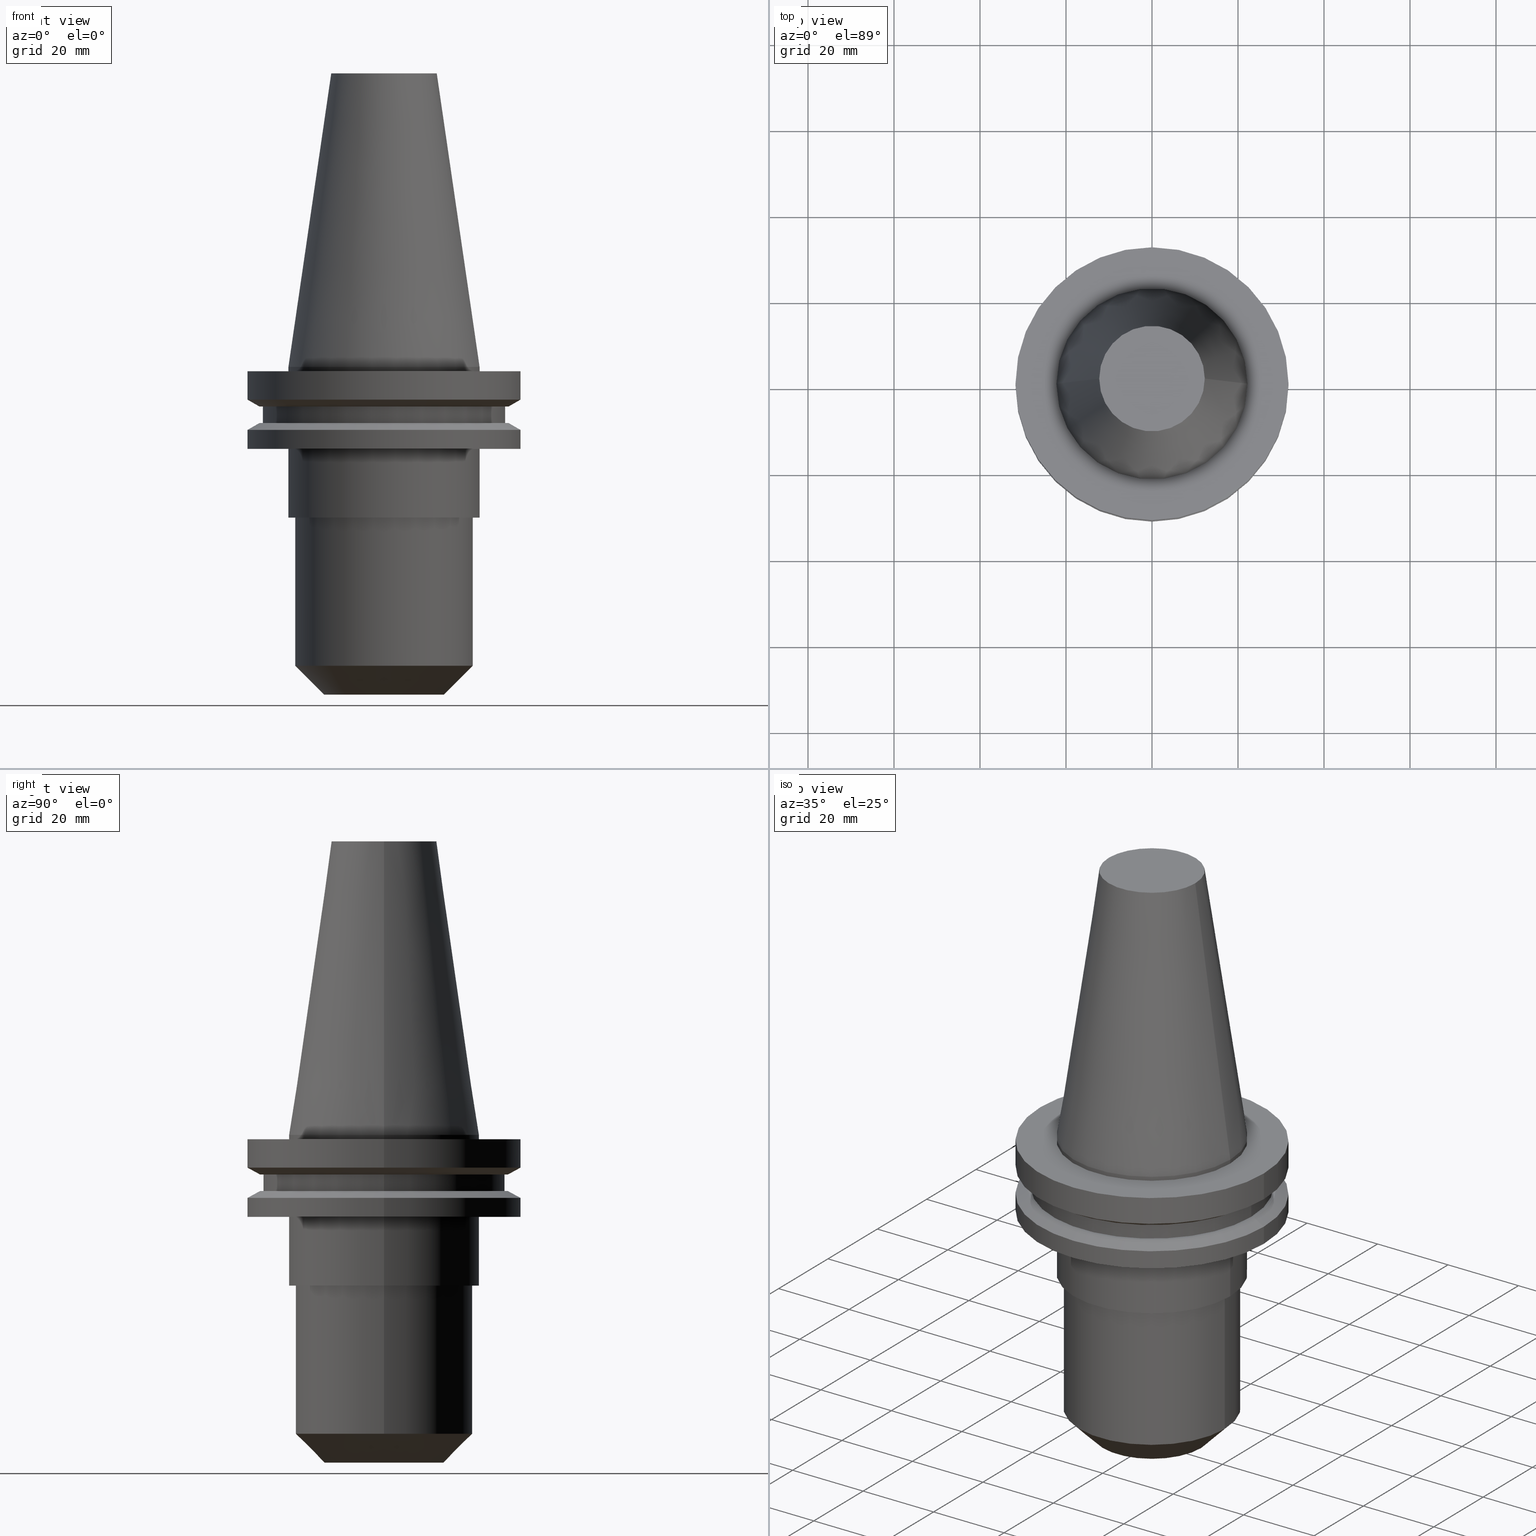
[diagram: canonical four-view strip — front | top / right | iso, engineering-drawing reading convention]
A machine part, canonical four-view strip (front | top / right | iso — engineering-drawing reading convention). The complete STEP part file that produces these views, byte-faithful:
ISO-10303-21;
HEADER;
FILE_DESCRIPTION (( 'STEP AP203' ),
    '1' );
FILE_NAME ('BCV40-EM_625-3.stp',
    '2022-02-23T14:48:29',
    ( '' ),
    ( '' ),
    'SwSTEP 2.0',
    'SolidWorks 2021',
    '' );
FILE_SCHEMA (( 'CONFIG_CONTROL_DESIGN' ));
ENDSEC;

DATA;
#1 = CARTESIAN_POINT ( 'NONE',  ( 0.000000000000000000, 0.000000000000000000, -9.205000000000005400 ) ) ;
#2 = AXIS2_PLACEMENT_3D ( 'NONE', #434, #543, #678 ) ;
#3 = CARTESIAN_POINT ( 'NONE',  ( 0.000000000000000000, 0.000000000000000000, -35.04999999999999716 ) ) ;
#4 = CC_DESIGN_SECURITY_CLASSIFICATION ( #272, ( #30 ) ) ;
#5 = EDGE_LOOP ( 'NONE', ( #97, #91 ) ) ;
#6 = MECHANICAL_CONTEXT ( 'NONE', #168, 'mechanical' ) ;
#7 = CARTESIAN_POINT ( 'NONE',  ( 0.000000000000000000, 0.000000000000000000, 0.000000000000000000 ) ) ;
#8 = PERSON_AND_ORGANIZATION ( #773, #658 ) ;
#9 = CARTESIAN_POINT ( 'NONE',  ( 12.27178102086201150, 2.112318622904291439E-15, 68.25000000000000000 ) ) ;
#10 = CARTESIAN_POINT ( 'NONE',  ( 0.000000000000000000, 22.22499999999999787, -35.04999999999999716 ) ) ;
#11 = CARTESIAN_POINT ( 'NONE',  ( 0.000000000000000000, 0.000000000000000000, 68.25000000000000000 ) ) ;
#12 = CC_DESIGN_PERSON_AND_ORGANIZATION_ASSIGNMENT ( #8, #279, ( #30 ) ) ;
#13 = APPROVAL_STATUS ( 'not_yet_approved' ) ;
#14 = EDGE_LOOP ( 'NONE', ( #20, #565 ) ) ;
#15 = DIRECTION ( 'NONE',  ( 1.000000000000000000, 0.000000000000000000, 0.000000000000000000 ) ) ;
#16 = DIRECTION ( 'NONE',  ( -0.000000000000000000, -0.000000000000000000, 1.000000000000000000 ) ) ;
#17 = EDGE_CURVE ( 'NONE', #575, #775, #487, .T. ) ;
#18 = AXIS2_PLACEMENT_3D ( 'NONE', #398, #117, #52 ) ;
#19 = CIRCLE ( 'NONE', #382, 22.22500000000000142 ) ;
#20 = ORIENTED_EDGE ( 'NONE', *, *, #260, .T. ) ;
#21 = CARTESIAN_POINT ( 'NONE',  ( 0.000000000000000000, 31.75000000000000000, -0.9999999999999995559 ) ) ;
#22 = ORIENTED_EDGE ( 'NONE', *, *, #292, .T. ) ;
#23 = CARTESIAN_POINT ( 'NONE',  ( -22.22500000000000142, 0.000000000000000000, 0.000000000000000000 ) ) ;
#24 = EDGE_CURVE ( 'NONE', #233, #732, #93, .T. ) ;
#25 = EDGE_CURVE ( 'NONE', #371, #512, #323, .T. ) ;
#26 = DIRECTION ( 'NONE',  ( -0.000000000000000000, -0.000000000000000000, 1.000000000000000000 ) ) ;
#27 = ORIENTED_EDGE ( 'NONE', *, *, #532, .F. ) ;
#28 = VECTOR ( 'NONE', #34, 999.9999999999998863 ) ;
#29 = FACE_OUTER_BOUND ( 'NONE', #5, .T. ) ;
#30 = PRODUCT_DEFINITION_FORMATION_WITH_SPECIFIED_SOURCE ( 'ANY', '', #250, .NOT_KNOWN. ) ;
#31 = CARTESIAN_POINT ( 'NONE',  ( 0.000000000000000000, 0.000000000000000000, -1.000000000000000888 ) ) ;
#32 = VERTEX_POINT ( 'NONE', #584 ) ;
#33 = DIRECTION ( 'NONE',  ( 1.000000000000000000, 0.000000000000000000, 0.000000000000000000 ) ) ;
#34 = DIRECTION ( 'NONE',  ( 0.1443082272672999711, 1.767266086135276757E-17, -0.9895327864921755756 ) ) ;
#35 = VERTEX_POINT ( 'NONE', #68 ) ;
#36 = CARTESIAN_POINT ( 'NONE',  ( 0.000000000000000000, 0.000000000000000000, -9.205000000000005400 ) ) ;
#37 = DIRECTION ( 'NONE',  ( 1.000000000000000000, 0.000000000000000000, 0.000000000000000000 ) ) ;
#38 = ORIENTED_EDGE ( 'NONE', *, *, #427, .F. ) ;
#39 = ORIENTED_EDGE ( 'NONE', *, *, #236, .F. ) ;
#40 = AXIS2_PLACEMENT_3D ( 'NONE', #160, #280, #630 ) ;
#41 = AXIS2_PLACEMENT_3D ( 'NONE', #591, #61, #841 ) ;
#42 = AXIS2_PLACEMENT_3D ( 'NONE', #312, #577, #833 ) ;
#43 = DIRECTION ( 'NONE',  ( 1.000000000000000000, 0.000000000000000000, 0.000000000000000000 ) ) ;
#44 = EDGE_LOOP ( 'NONE', ( #302, #853 ) ) ;
#45 = VERTEX_POINT ( 'NONE', #121 ) ;
#46 = DESIGN_CONTEXT ( 'detailed design', #443, 'design' ) ;
#47 = LINE ( 'NONE', #362, #28 ) ;
#48 = DIRECTION ( 'NONE',  ( -0.000000000000000000, -0.000000000000000000, 1.000000000000000000 ) ) ;
#49 = ORIENTED_EDGE ( 'NONE', *, *, #795, .T. ) ;
#50 = CARTESIAN_POINT ( 'NONE',  ( 0.000000000000000000, 0.000000000000000000, -14.65472339340266572 ) ) ;
#51 = EDGE_CURVE ( 'NONE', #371, #316, #264, .T. ) ;
#52 = DIRECTION ( 'NONE',  ( -1.000000000000000000, 0.000000000000000000, -0.000000000000000000 ) ) ;
#53 = FACE_OUTER_BOUND ( 'NONE', #95, .T. ) ;
#54 = CIRCLE ( 'NONE', #546, 22.22500000000000142 ) ;
#55 = LINE ( 'NONE', #786, #126 ) ;
#56 = AXIS2_PLACEMENT_3D ( 'NONE', #346, #402, #70 ) ;
#57 = FACE_OUTER_BOUND ( 'NONE', #176, .T. ) ;
#58 = VECTOR ( 'NONE', #737, 1000.000000000000000 ) ;
#59 = CARTESIAN_POINT ( 'NONE',  ( 0.000000000000000000, 0.000000000000000000, -19.04999999999999716 ) ) ;
#60 = APPLICATION_PROTOCOL_DEFINITION ( 'international standard', 'config_control_design', 1994, #168 ) ;
#61 = DIRECTION ( 'NONE',  ( 0.000000000000000000, 0.000000000000000000, -1.000000000000000000 ) ) ;
#62 = DIRECTION ( 'NONE',  ( 1.000000000000000000, 0.000000000000000000, 0.000000000000000000 ) ) ;
#63 = EDGE_CURVE ( 'NONE', #171, #628, #283, .T. ) ;
#64 = ORIENTED_EDGE ( 'NONE', *, *, #427, .T. ) ;
#65 = CARTESIAN_POINT ( 'NONE',  ( 20.63749999999999929, 0.000000000000000000, 0.000000000000000000 ) ) ;
#66 = FACE_OUTER_BOUND ( 'NONE', #317, .T. ) ;
#67 = CARTESIAN_POINT ( 'NONE',  ( 20.63749999999999929, 0.000000000000000000, -35.04999999999999716 ) ) ;
#68 = CARTESIAN_POINT ( 'NONE',  ( 22.22499999999999787, 0.000000000000000000, -35.04999999999999716 ) ) ;
#69 = LINE ( 'NONE', #395, #412 ) ;
#70 = DIRECTION ( 'NONE',  ( 1.000000000000000000, 0.000000000000000000, 0.000000000000000000 ) ) ;
#71 = CONICAL_SURFACE ( 'NONE', #381, 28.97919780457007732, 1.047197551196598297 ) ;
#72 = DATE_AND_TIME ( #671, #216 ) ;
#73 = EDGE_CURVE ( 'NONE', #420, #534, #649, .T. ) ;
#74 = CARTESIAN_POINT ( 'NONE',  ( 0.000000000000000000, 22.22499999999999787, -35.04999999999999716 ) ) ;
#75 = EDGE_CURVE ( 'NONE', #299, #337, #139, .T. ) ;
#76 = CARTESIAN_POINT ( 'NONE',  ( 22.22500000000000142, 2.721777511104992849E-15, 0.000000000000000000 ) ) ;
#77 = DIRECTION ( 'NONE',  ( 1.000000000000000000, 0.000000000000000000, 0.000000000000000000 ) ) ;
#78 = EDGE_CURVE ( 'NONE', #105, #500, #54, .T. ) ;
#79 = DIRECTION ( 'NONE',  ( -0.1443082272672999711, 0.000000000000000000, -0.9895327864921755756 ) ) ;
#80 = CALENDAR_DATE ( 2022, 23, 2 ) ;
#81 = EDGE_LOOP ( 'NONE', ( #831, #377, #310, #640 ) ) ;
#82 = FACE_OUTER_BOUND ( 'NONE', #766, .T. ) ;
#83 = ADVANCED_FACE ( 'NONE', ( #53 ), #320, .T. ) ;
#84 = CIRCLE ( 'NONE', #214, 12.27178102086201150 ) ;
#85 = AXIS2_PLACEMENT_3D ( 'NONE', #731, #132, #403 ) ;
#86 = VECTOR ( 'NONE', #605, 1000.000000000000000 ) ;
#87 = PLANE ( 'NONE',  #183 ) ;
#88 = ADVANCED_FACE ( 'NONE', ( #595 ), #784, .F. ) ;
#89 = VERTEX_POINT ( 'NONE', #665 ) ;
#90 = CARTESIAN_POINT ( 'NONE',  ( 0.000000000000000000, 0.000000000000000000, -69.50000000000000000 ) ) ;
#91 = ORIENTED_EDGE ( 'NONE', *, *, #486, .F. ) ;
#92 = DIRECTION ( 'NONE',  ( -0.000000000000000000, -0.000000000000000000, 1.000000000000000000 ) ) ;
#93 = CIRCLE ( 'NONE', #209, 7.937500000000000000 ) ;
#94 = DIRECTION ( 'NONE',  ( -0.000000000000000000, -0.000000000000000000, 1.000000000000000000 ) ) ;
#95 = EDGE_LOOP ( 'NONE', ( #237, #358, #564, #620 ) ) ;
#96 = AXIS2_PLACEMENT_3D ( 'NONE', #392, #258, #669 ) ;
#97 = ORIENTED_EDGE ( 'NONE', *, *, #460, .F. ) ;
#98 = DIRECTION ( 'NONE',  ( 1.000000000000000000, 0.000000000000000000, 0.000000000000000000 ) ) ;
#99 = CIRCLE ( 'NONE', #424, 31.75000000000000000 ) ;
#100 = DIRECTION ( 'NONE',  ( -0.000000000000000000, -0.000000000000000000, 1.000000000000000000 ) ) ;
#101 = ORIENTED_EDGE ( 'NONE', *, *, #838, .T. ) ;
#102 = ORIENTED_EDGE ( 'NONE', *, *, #522, .T. ) ;
#103 = CYLINDRICAL_SURFACE ( 'NONE', #454, 7.937500000000000000 ) ;
#104 = LINE ( 'NONE', #319, #198 ) ;
#105 = VERTEX_POINT ( 'NONE', #341 ) ;
#106 = CARTESIAN_POINT ( 'NONE',  ( -31.75000000000000000, 3.888253587292846476E-15, -7.605276606597335842 ) ) ;
#107 = CARTESIAN_POINT ( 'NONE',  ( 0.000000000000000000, 0.000000000000000000, 68.25000000000000000 ) ) ;
#108 = VERTEX_POINT ( 'NONE', #728 ) ;
#109 = VERTEX_POINT ( 'NONE', #527 ) ;
#110 = CIRCLE ( 'NONE', #738, 7.937500000000000000 ) ;
#111 = CYLINDRICAL_SURFACE ( 'NONE', #504, 22.22500000000000142 ) ;
#112 = VERTEX_POINT ( 'NONE', #9 ) ;
#113 = AXIS2_PLACEMENT_3D ( 'NONE', #552, #481, #743 ) ;
#114 = ORIENTED_EDGE ( 'NONE', *, *, #631, .T. ) ;
#115 = EDGE_CURVE ( 'NONE', #299, #109, #407, .T. ) ;
#116 = CC_DESIGN_PERSON_AND_ORGANIZATION_ASSIGNMENT ( #405, #197, ( #250 ) ) ;
#117 = DIRECTION ( 'NONE',  ( 0.000000000000000000, 0.000000000000000000, -1.000000000000000000 ) ) ;
#118 = DIRECTION ( 'NONE',  ( -0.000000000000000000, -0.000000000000000000, 1.000000000000000000 ) ) ;
#119 = DIRECTION ( 'NONE',  ( -0.000000000000000000, -0.000000000000000000, 1.000000000000000000 ) ) ;
#120 = CARTESIAN_POINT ( 'NONE',  ( 22.22500000000000142, 0.000000000000000000, 68.25000000000000000 ) ) ;
#121 = CARTESIAN_POINT ( 'NONE',  ( -13.93749999999997691, 2.117108154025985294E-15, -76.20000000000001705 ) ) ;
#122 = VERTEX_POINT ( 'NONE', #601 ) ;
#123 = DIRECTION ( 'NONE',  ( 1.000000000000000000, 0.000000000000000000, 0.000000000000000000 ) ) ;
#124 = AXIS2_PLACEMENT_3D ( 'NONE', #510, #769, #712 ) ;
#125 = DIRECTION ( 'NONE',  ( 1.000000000000000000, 0.000000000000000000, 0.000000000000000000 ) ) ;
#126 = VECTOR ( 'NONE', #647, 1000.000000000000000 ) ;
#127 = EDGE_LOOP ( 'NONE', ( #269, #518, #847, #816 ) ) ;
#128 = AXIS2_PLACEMENT_3D ( 'NONE', #90, #607, #559 ) ;
#129 = APPROVAL_ROLE ( '' ) ;
#130 = DIRECTION ( 'NONE',  ( -0.000000000000000000, -0.000000000000000000, 1.000000000000000000 ) ) ;
#131 = CARTESIAN_POINT ( 'NONE',  ( 0.000000000000000000, 0.000000000000000000, -76.20000000000001705 ) ) ;
#132 = DIRECTION ( 'NONE',  ( -0.000000000000000000, -0.000000000000000000, 1.000000000000000000 ) ) ;
#133 = ORIENTED_EDGE ( 'NONE', *, *, #17, .F. ) ;
#134 = DIRECTION ( 'NONE',  ( -0.000000000000000000, -0.000000000000000000, 1.000000000000000000 ) ) ;
#135 = DIRECTION ( 'NONE',  ( 1.000000000000000000, 0.000000000000000000, 0.000000000000000000 ) ) ;
#136 = ORIENTED_EDGE ( 'NONE', *, *, #360, .F. ) ;
#137 = PERSON_AND_ORGANIZATION ( #773, #658 ) ;
#138 = EDGE_CURVE ( 'NONE', #452, #325, #793, .T. ) ;
#139 = CIRCLE ( 'NONE', #435, 22.22500000000000142 ) ;
#140 = PLANE ( 'NONE',  #243 ) ;
#141 = AXIS2_PLACEMENT_3D ( 'NONE', #301, #563, #37 ) ;
#142 = CARTESIAN_POINT ( 'NONE',  ( 0.000000000000000000, 0.000000000000000000, -76.20000000000000284 ) ) ;
#143 = CC_DESIGN_APPROVAL ( #212, ( #30 ) ) ;
#144 = CARTESIAN_POINT ( 'NONE',  ( 31.75000000000000000, 3.888253587292846476E-15, -14.65472339340266572 ) ) ;
#145 = EDGE_CURVE ( 'NONE', #450, #732, #851, .T. ) ;
#146 = DIRECTION ( 'NONE',  ( 1.000000000000000000, 0.000000000000000000, 0.000000000000000000 ) ) ;
#147 = DIRECTION ( 'NONE',  ( 1.000000000000000000, 0.000000000000000000, 0.000000000000000000 ) ) ;
#148 = EDGE_LOOP ( 'NONE', ( #192, #715, #252, #650 ) ) ;
#149 = FACE_OUTER_BOUND ( 'NONE', #721, .T. ) ;
#150 = EDGE_CURVE ( 'NONE', #109, #839, #491, .T. ) ;
#151 = DIRECTION ( 'NONE',  ( -0.000000000000000000, -0.000000000000000000, 1.000000000000000000 ) ) ;
#152 = AXIS2_PLACEMENT_3D ( 'NONE', #806, #92, #15 ) ;
#153 = AXIS2_PLACEMENT_3D ( 'NONE', #777, #189, #590 ) ;
#154 = CARTESIAN_POINT ( 'NONE',  ( 0.000000000000000000, 28.97919780457007732, -9.204999999999996518 ) ) ;
#155 = CARTESIAN_POINT ( 'NONE',  ( -31.75000000000000000, 3.888253587292846476E-15, -1.000000000000000888 ) ) ;
#156 = CARTESIAN_POINT ( 'NONE',  ( 31.75000000000000000, 0.000000000000000000, -14.65472339340266572 ) ) ;
#157 = ORIENTED_EDGE ( 'NONE', *, *, #75, .F. ) ;
#158 = ORIENTED_EDGE ( 'NONE', *, *, #855, .T. ) ;
#159 = ADVANCED_FACE ( 'NONE', ( #66, #203 ), #765, .F. ) ;
#160 = CARTESIAN_POINT ( 'NONE',  ( 0.000000000000000000, 0.000000000000000000, 68.25000000000000000 ) ) ;
#161 = CC_DESIGN_DATE_AND_TIME_ASSIGNMENT ( #206, #736, ( #326 ) ) ;
#162 = DIRECTION ( 'NONE',  ( 1.000000000000000000, 0.000000000000000000, 0.000000000000000000 ) ) ;
#163 = CIRCLE ( 'NONE', #226, 13.93749999999997691 ) ;
#164 = EDGE_LOOP ( 'NONE', ( #136, #327, #770, #496 ) ) ;
#165 = CARTESIAN_POINT ( 'NONE',  ( 0.000000000000000000, 0.000000000000000000, 0.000000000000000000 ) ) ;
#166 = CIRCLE ( 'NONE', #186, 28.97919780457007732 ) ;
#167 = EDGE_CURVE ( 'NONE', #452, #290, #228, .T. ) ;
#168 = APPLICATION_CONTEXT ( 'configuration controlled 3d designs of mechanical parts and assemblies' ) ;
#169 = AXIS2_PLACEMENT_3D ( 'NONE', #222, #151, #147 ) ;
#170 = DIRECTION ( 'NONE',  ( -0.000000000000000000, -0.000000000000000000, 1.000000000000000000 ) ) ;
#171 = VERTEX_POINT ( 'NONE', #355 ) ;
#172 = ORIENTED_EDGE ( 'NONE', *, *, #297, .T. ) ;
#173 = DIRECTION ( 'NONE',  ( 1.000000000000000000, 0.000000000000000000, 0.000000000000000000 ) ) ;
#174 = DIRECTION ( 'NONE',  ( 1.000000000000000000, 0.000000000000000000, 0.000000000000000000 ) ) ;
#175 = EDGE_LOOP ( 'NONE', ( #644, #618, #815, #501 ) ) ;
#176 = EDGE_LOOP ( 'NONE', ( #415, #561, #523, #568 ) ) ;
#177 = LINE ( 'NONE', #826, #549 ) ;
#178 = FACE_OUTER_BOUND ( 'NONE', #507, .T. ) ;
#179 = EDGE_CURVE ( 'NONE', #274, #462, #509, .T. ) ;
#180 = ORIENTED_EDGE ( 'NONE', *, *, #494, .F. ) ;
#181 = ADVANCED_FACE ( 'NONE', ( #680 ), #610, .T. ) ;
#182 = ORIENTED_EDGE ( 'NONE', *, *, #63, .F. ) ;
#183 = AXIS2_PLACEMENT_3D ( 'NONE', #21, #619, #418 ) ;
#184 = DIRECTION ( 'NONE',  ( 1.000000000000000000, 0.000000000000000000, 0.000000000000000000 ) ) ;
#185 = AXIS2_PLACEMENT_3D ( 'NONE', #483, #550, #98 ) ;
#186 = AXIS2_PLACEMENT_3D ( 'NONE', #248, #338, #123 ) ;
#187 = DIRECTION ( 'NONE',  ( 1.000000000000000000, 0.000000000000000000, 0.000000000000000000 ) ) ;
#188 = DIRECTION ( 'NONE',  ( 1.000000000000000000, 0.000000000000000000, 0.000000000000000000 ) ) ;
#189 = DIRECTION ( 'NONE',  ( -0.000000000000000000, -0.000000000000000000, 1.000000000000000000 ) ) ;
#190 = CARTESIAN_POINT ( 'NONE',  ( 0.000000000000000000, 0.000000000000000000, 68.25000000000000000 ) ) ;
#191 = EDGE_LOOP ( 'NONE', ( #49, #114, #764, #485 ) ) ;
#192 = ORIENTED_EDGE ( 'NONE', *, *, #167, .F. ) ;
#193 = PLANE ( 'NONE',  #600 ) ;
#194 = LINE ( 'NONE', #120, #548 ) ;
#195 = DIRECTION ( 'NONE',  ( -0.000000000000000000, -0.000000000000000000, 1.000000000000000000 ) ) ;
#196 = ORIENTED_EDGE ( 'NONE', *, *, #249, .F. ) ;
#197 = PERSON_AND_ORGANIZATION_ROLE ( 'design_owner' ) ;
#198 = VECTOR ( 'NONE', #834, 1000.000000000000000 ) ;
#199 = CARTESIAN_POINT ( 'NONE',  ( 0.000000000000000000, 0.000000000000000000, -76.20000000000001705 ) ) ;
#200 = AXIS2_PLACEMENT_3D ( 'NONE', #36, #119, #570 ) ;
#201 = DIRECTION ( 'NONE',  ( 1.000000000000000000, 0.000000000000000000, 0.000000000000000000 ) ) ;
#202 = CARTESIAN_POINT ( 'NONE',  ( 28.97919780457007732, 0.000000000000000000, -9.205000000000005400 ) ) ;
#203 = FACE_BOUND ( 'NONE', #824, .T. ) ;
#204 = CARTESIAN_POINT ( 'NONE',  ( 13.93749999999997691, 0.000000000000000000, -76.20000000000001705 ) ) ;
#205 = ADVANCED_FACE ( 'NONE', ( #149 ), #220, .T. ) ;
#206 = DATE_AND_TIME ( #801, #842 ) ;
#207 = CARTESIAN_POINT ( 'NONE',  ( 31.75000000000000000, 0.000000000000000000, 68.25000000000000000 ) ) ;
#208 = ADVANCED_FACE ( 'NONE', ( #613 ), #829, .T. ) ;
#209 = AXIS2_PLACEMENT_3D ( 'NONE', #3, #598, #62 ) ;
#210 = DIRECTION ( 'NONE',  ( 1.000000000000000000, 0.000000000000000000, 0.000000000000000000 ) ) ;
#211 = AXIS2_PLACEMENT_3D ( 'NONE', #386, #844, #389 ) ;
#212 = APPROVAL ( #270, 'UNSPECIFIED' ) ;
#213 = CYLINDRICAL_SURFACE ( 'NONE', #780, 22.22500000000000142 ) ;
#214 = AXIS2_PLACEMENT_3D ( 'NONE', #190, #724, #125 ) ;
#215 = AXIS2_PLACEMENT_3D ( 'NONE', #659, #130, #334 ) ;
#216 = LOCAL_TIME ( 8, 48, 29.00000000000000000, #410 ) ;
#217 = LINE ( 'NONE', #65, #538 ) ;
#218 = EDGE_LOOP ( 'NONE', ( #589, #622, #526, #757 ) ) ;
#219 = CARTESIAN_POINT ( 'NONE',  ( -28.97919780457007732, 3.548928183322474856E-15, -9.205000000000005400 ) ) ;
#220 = CYLINDRICAL_SURFACE ( 'NONE', #113, 20.63749999999999929 ) ;
#221 = EDGE_CURVE ( 'NONE', #512, #371, #425, .T. ) ;
#222 = CARTESIAN_POINT ( 'NONE',  ( 0.000000000000000000, 0.000000000000000000, -13.05499999999999794 ) ) ;
#223 = APPROVAL_DATE_TIME ( #488, #417 ) ;
#224 = ORIENTED_EDGE ( 'NONE', *, *, #278, .F. ) ;
#225 = LINE ( 'NONE', #23, #624 ) ;
#226 = AXIS2_PLACEMENT_3D ( 'NONE', #131, #787, #135 ) ;
#227 = AXIS2_PLACEMENT_3D ( 'NONE', #608, #401, #210 ) ;
#228 = CIRCLE ( 'NONE', #169, 28.97919780457008088 ) ;
#229 = PERSON_AND_ORGANIZATION ( #773, #658 ) ;
#230 = DIRECTION ( 'NONE',  ( -0.000000000000000000, -0.000000000000000000, 1.000000000000000000 ) ) ;
#231 = ADVANCED_FACE ( 'NONE', ( #685, #82 ), #87, .F. ) ;
#232 = ORIENTED_EDGE ( 'NONE', *, *, #554, .T. ) ;
#233 = VERTEX_POINT ( 'NONE', #281 ) ;
#234 = CARTESIAN_POINT ( 'NONE',  ( 31.75000000000000000, 0.000000000000000000, -7.605276606597335842 ) ) ;
#235 = DIRECTION ( 'NONE',  ( -0.000000000000000000, -0.000000000000000000, 1.000000000000000000 ) ) ;
#236 = EDGE_CURVE ( 'NONE', #304, #109, #225, .T. ) ;
#237 = ORIENTED_EDGE ( 'NONE', *, *, #221, .T. ) ;
#238 = FACE_OUTER_BOUND ( 'NONE', #321, .T. ) ;
#239 = LINE ( 'NONE', #245, #827 ) ;
#240 = ORIENTED_EDGE ( 'NONE', *, *, #795, .F. ) ;
#241 = EDGE_LOOP ( 'NONE', ( #444, #514, #798, #38 ) ) ;
#242 = DIRECTION ( 'NONE',  ( -1.000000000000000000, 0.000000000000000000, 0.000000000000000000 ) ) ;
#243 = AXIS2_PLACEMENT_3D ( 'NONE', #10, #719, #772 ) ;
#244 = ADVANCED_FACE ( 'NONE', ( #291 ), #555, .T. ) ;
#245 = CARTESIAN_POINT ( 'NONE',  ( -22.22500000000000142, 2.721777511104992849E-15, 68.25000000000000000 ) ) ;
#246 = ORIENTED_EDGE ( 'NONE', *, *, #838, .F. ) ;
#247 = VERTEX_POINT ( 'NONE', #426 ) ;
#248 = CARTESIAN_POINT ( 'NONE',  ( 0.000000000000000000, 0.000000000000000000, -9.205000000000005400 ) ) ;
#249 = EDGE_CURVE ( 'NONE', #500, #105, #556, .T. ) ;
#250 = PRODUCT ( 'BCV40-EM_625-3', 'BCV40-EM_625-3', '', ( #6 ) ) ;
#251 = CARTESIAN_POINT ( 'NONE',  ( -7.937500000000000000, 9.720633968232116190E-16, 0.000000000000000000 ) ) ;
#252 = ORIENTED_EDGE ( 'NONE', *, *, #638, .T. ) ;
#253 = VERTEX_POINT ( 'NONE', #352 ) ;
#254 = CARTESIAN_POINT ( 'NONE',  ( 13.93749999999997691, 0.000000000000000000, -76.20000000000001705 ) ) ;
#255 = CARTESIAN_POINT ( 'NONE',  ( -31.75000000000000000, 3.888253587292846476E-15, 68.25000000000000000 ) ) ;
#256 = DIRECTION ( 'NONE',  ( -0.000000000000000000, -0.000000000000000000, 1.000000000000000000 ) ) ;
#257 = VECTOR ( 'NONE', #369, 1000.000000000000000 ) ;
#258 = DIRECTION ( 'NONE',  ( -0.000000000000000000, -0.000000000000000000, 1.000000000000000000 ) ) ;
#259 = ORIENTED_EDGE ( 'NONE', *, *, #753, .F. ) ;
#260 = EDGE_CURVE ( 'NONE', #450, #122, #262, .T. ) ;
#261 = CARTESIAN_POINT ( 'NONE',  ( -22.22500000000000142, 2.721777511104992849E-15, 68.25000000000000000 ) ) ;
#262 = CIRCLE ( 'NONE', #617, 7.937500000000000000 ) ;
#263 = FACE_OUTER_BOUND ( 'NONE', #191, .T. ) ;
#264 = LINE ( 'NONE', #255, #823 ) ;
#265 = PERSON_AND_ORGANIZATION ( #773, #658 ) ;
#266 = CARTESIAN_POINT ( 'NONE',  ( 0.000000000000000000, 0.000000000000000000, -13.05499999999999794 ) ) ;
#267 = AXIS2_PLACEMENT_3D ( 'NONE', #587, #661, #188 ) ;
#268 = DIRECTION ( 'NONE',  ( -0.000000000000000000, -0.000000000000000000, 1.000000000000000000 ) ) ;
#269 = ORIENTED_EDGE ( 'NONE', *, *, #631, .F. ) ;
#270 = APPROVAL_STATUS ( 'not_yet_approved' ) ;
#271 = CIRCLE ( 'NONE', #141, 7.937500000000000000 ) ;
#272 = SECURITY_CLASSIFICATION ( '', '', #811 ) ;
#273 = CARTESIAN_POINT ( 'NONE',  ( 28.97919780457008088, 3.718590885307660666E-15, -13.05499999999999794 ) ) ;
#274 = VERTEX_POINT ( 'NONE', #830 ) ;
#275 = ORIENTED_EDGE ( 'NONE', *, *, #730, .F. ) ;
#276 = DIRECTION ( 'NONE',  ( -0.000000000000000000, -0.000000000000000000, 1.000000000000000000 ) ) ;
#277 = EDGE_CURVE ( 'NONE', #316, #325, #351, .T. ) ;
#278 = EDGE_CURVE ( 'NONE', #775, #628, #104, .T. ) ;
#279 = PERSON_AND_ORGANIZATION_ROLE ( 'creator' ) ;
#280 = DIRECTION ( 'NONE',  ( -0.000000000000000000, -0.000000000000000000, 1.000000000000000000 ) ) ;
#281 = CARTESIAN_POINT ( 'NONE',  ( -7.937500000000000000, 9.720633968232116190E-16, -35.04999999999999716 ) ) ;
#282 = DATE_AND_TIME ( #849, #294 ) ;
#283 = CIRCLE ( 'NONE', #211, 31.75000000000000000 ) ;
#284 = DIRECTION ( 'NONE',  ( 1.000000000000000000, 0.000000000000000000, 0.000000000000000000 ) ) ;
#285 = VECTOR ( 'NONE', #578, 1000.000000000000000 ) ;
#286 = DIRECTION ( 'NONE',  ( 1.000000000000000000, 0.000000000000000000, 0.000000000000000000 ) ) ;
#287 = APPROVAL_PERSON_ORGANIZATION ( #137, #674, #466 ) ;
#288 = DATE_AND_TIME ( #807, #625 ) ;
#289 = EDGE_CURVE ( 'NONE', #122, #233, #636, .T. ) ;
#290 = VERTEX_POINT ( 'NONE', #648 ) ;
#291 = FACE_OUTER_BOUND ( 'NONE', #455, .T. ) ;
#292 = EDGE_CURVE ( 'NONE', #575, #171, #315, .T. ) ;
#293 = DIRECTION ( 'NONE',  ( 1.000000000000000000, 0.000000000000000000, 0.000000000000000000 ) ) ;
#294 = LOCAL_TIME ( 8, 48, 29.00000000000000000, #727 ) ;
#295 = ORIENTED_EDGE ( 'NONE', *, *, #850, .F. ) ;
#296 = DIRECTION ( 'NONE',  ( 1.000000000000000000, 0.000000000000000000, 0.000000000000000000 ) ) ;
#297 = EDGE_CURVE ( 'NONE', #628, #171, #611, .T. ) ;
#298 = DIRECTION ( 'NONE',  ( -0.000000000000000000, -0.000000000000000000, 1.000000000000000000 ) ) ;
#299 = VERTEX_POINT ( 'NONE', #774 ) ;
#300 = CARTESIAN_POINT ( 'NONE',  ( 0.000000000000000000, 0.000000000000000000, 68.25000000000000000 ) ) ;
#301 = CARTESIAN_POINT ( 'NONE',  ( 0.000000000000000000, 0.000000000000000000, -76.20000000000000284 ) ) ;
#302 = ORIENTED_EDGE ( 'NONE', *, *, #249, .T. ) ;
#303 = EDGE_CURVE ( 'NONE', #122, #450, #271, .T. ) ;
#304 = VERTEX_POINT ( 'NONE', #495 ) ;
#305 = DIRECTION ( 'NONE',  ( -0.000000000000000000, -0.000000000000000000, 1.000000000000000000 ) ) ;
#306 = CLOSED_SHELL ( 'NONE', ( #477, #691, #205, #361, #735, #583, #547, #768, #83, #374, #463, #703, #208, #517, #673, #750, #376, #581, #478, #311, #159, #391, #181, #231, #244, #339, #88, #646, #602, #614 ) ) ;
#307 = CYLINDRICAL_SURFACE ( 'NONE', #803, 28.17999999999999972 ) ;
#308 = ORIENTED_EDGE ( 'NONE', *, *, #606, .F. ) ;
#309 = CONICAL_SURFACE ( 'NONE', #2, 31.75000000000000000, 1.047197551196597853 ) ;
#310 = ORIENTED_EDGE ( 'NONE', *, *, #697, .T. ) ;
#311 = ADVANCED_FACE ( 'NONE', ( #448 ), #307, .T. ) ;
#312 = CARTESIAN_POINT ( 'NONE',  ( 0.000000000000000000, 0.000000000000000000, -35.04999999999999716 ) ) ;
#313 = CIRCLE ( 'NONE', #612, 28.17999999999999972 ) ;
#314 = AXIS2_PLACEMENT_3D ( 'NONE', #421, #423, #286 ) ;
#315 = LINE ( 'NONE', #513, #257 ) ;
#316 = VERTEX_POINT ( 'NONE', #756 ) ;
#317 = EDGE_LOOP ( 'NONE', ( #776, #681 ) ) ;
#318 = FACE_BOUND ( 'NONE', #44, .T. ) ;
#319 = CARTESIAN_POINT ( 'NONE',  ( -31.75000000000000000, 3.888253587292846476E-15, 68.25000000000000000 ) ) ;
#320 = CYLINDRICAL_SURFACE ( 'NONE', #393, 31.75000000000000000 ) ;
#321 = EDGE_LOOP ( 'NONE', ( #180, #820 ) ) ;
#322 = CARTESIAN_POINT ( 'NONE',  ( 7.937500000000000000, 0.000000000000000000, -35.04999999999999716 ) ) ;
#323 = CIRCLE ( 'NONE', #639, 31.74999999999999289 ) ;
#324 = CARTESIAN_POINT ( 'NONE',  ( 7.937500000000000000, 0.000000000000000000, -76.20000000000000284 ) ) ;
#325 = VERTEX_POINT ( 'NONE', #156 ) ;
#326 = PRODUCT_DEFINITION ( 'UNKNOWN', '', #30, #46 ) ;
#327 = ORIENTED_EDGE ( 'NONE', *, *, #522, .F. ) ;
#328 = CIRCLE ( 'NONE', #812, 20.63749999999999929 ) ;
#329 = DIRECTION ( 'NONE',  ( 0.8660254037844387076, 1.060575238724906915E-16, -0.4999999999999998890 ) ) ;
#330 = CARTESIAN_POINT ( 'NONE',  ( 22.22500000000000142, 0.000000000000000000, -19.04999999999999716 ) ) ;
#331 = EDGE_CURVE ( 'NONE', #579, #35, #761, .T. ) ;
#332 = ORIENTED_EDGE ( 'NONE', *, *, #785, .T. ) ;
#333 = APPROVAL_DATE_TIME ( #282, #674 ) ;
#334 = DIRECTION ( 'NONE',  ( 1.000000000000000000, 0.000000000000000000, 0.000000000000000000 ) ) ;
#335 = DIRECTION ( 'NONE',  ( 0.000000000000000000, 0.000000000000000000, -1.000000000000000000 ) ) ;
#336 = DIRECTION ( 'NONE',  ( -0.000000000000000000, -0.000000000000000000, 1.000000000000000000 ) ) ;
#337 = VERTEX_POINT ( 'NONE', #385 ) ;
#338 = DIRECTION ( 'NONE',  ( -0.000000000000000000, -0.000000000000000000, 1.000000000000000000 ) ) ;
#339 = ADVANCED_FACE ( 'NONE', ( #178 ), #632, .T. ) ;
#340 = FACE_OUTER_BOUND ( 'NONE', #790, .T. ) ;
#341 = CARTESIAN_POINT ( 'NONE',  ( -22.22500000000000142, 2.721777511104992849E-15, -19.04999999999999716 ) ) ;
#342 = VECTOR ( 'NONE', #195, 1000.000000000000000 ) ;
#343 = EDGE_CURVE ( 'NONE', #579, #105, #239, .T. ) ;
#344 = VECTOR ( 'NONE', #480, 1000.000000000000000 ) ;
#345 = CIRCLE ( 'NONE', #684, 28.17999999999999972 ) ;
#346 = CARTESIAN_POINT ( 'NONE',  ( 0.000000000000000000, 0.000000000000000000, -1.000000000000000888 ) ) ;
#347 = APPROVAL_DATE_TIME ( #72, #212 ) ;
#348 = FACE_BOUND ( 'NONE', #353, .T. ) ;
#349 = DIRECTION ( 'NONE',  ( 0.000000000000000000, -0.000000000000000000, 1.000000000000000000 ) ) ;
#350 = DIRECTION ( 'NONE',  ( 0.000000000000000000, -0.000000000000000000, 1.000000000000000000 ) ) ;
#351 = CIRCLE ( 'NONE', #458, 31.75000000000000000 ) ;
#352 = CARTESIAN_POINT ( 'NONE',  ( -28.97919780457007732, 3.718590885307660666E-15, -9.205000000000005400 ) ) ;
#353 = EDGE_LOOP ( 'NONE', ( #560, #805 ) ) ;
#354 = AXIS2_PLACEMENT_3D ( 'NONE', #199, #846, #464 ) ;
#355 = CARTESIAN_POINT ( 'NONE',  ( 31.75000000000000000, 0.000000000000000000, -1.000000000000000888 ) ) ;
#356 = CONICAL_SURFACE ( 'NONE', #804, 31.75000000000000000, 1.047197551196597853 ) ;
#357 = EDGE_CURVE ( 'NONE', #462, #274, #328, .T. ) ;
#358 = ORIENTED_EDGE ( 'NONE', *, *, #51, .T. ) ;
#359 = PLANE ( 'NONE',  #505 ) ;
#360 = EDGE_CURVE ( 'NONE', #112, #839, #47, .T. ) ;
#361 = ADVANCED_FACE ( 'NONE', ( #818 ), #499, .T. ) ;
#362 = CARTESIAN_POINT ( 'NONE',  ( 22.22500000000000142, 2.721777511104992849E-15, 0.000000000000000000 ) ) ;
#363 = AXIS2_PLACEMENT_3D ( 'NONE', #430, #100, #162 ) ;
#364 = CIRCLE ( 'NONE', #227, 20.63749999999999929 ) ;
#365 = ORIENTED_EDGE ( 'NONE', *, *, #63, .T. ) ;
#366 = PERSON_AND_ORGANIZATION_ROLE ( 'classification_officer' ) ;
#367 = ORIENTED_EDGE ( 'NONE', *, *, #709, .F. ) ;
#368 = CARTESIAN_POINT ( 'NONE',  ( 0.000000000000000000, 0.000000000000000000, -76.20000000000001705 ) ) ;
#369 = DIRECTION ( 'NONE',  ( -0.000000000000000000, -0.000000000000000000, 1.000000000000000000 ) ) ;
#370 = AXIS2_PLACEMENT_3D ( 'NONE', #687, #26, #484 ) ;
#371 = VERTEX_POINT ( 'NONE', #763 ) ;
#372 = CARTESIAN_POINT ( 'NONE',  ( 0.000000000000000000, 31.74999999999999289, -19.04999999999999716 ) ) ;
#373 = CARTESIAN_POINT ( 'NONE',  ( 0.000000000000000000, 0.000000000000000000, -14.65472339340266572 ) ) ;
#374 = ADVANCED_FACE ( 'NONE', ( #699 ), #111, .T. ) ;
#375 = ORIENTED_EDGE ( 'NONE', *, *, #482, .F. ) ;
#376 = ADVANCED_FACE ( 'NONE', ( #702 ), #706, .T. ) ;
#377 = ORIENTED_EDGE ( 'NONE', *, *, #25, .T. ) ;
#378 = DIRECTION ( 'NONE',  ( 1.000000000000000000, 0.000000000000000000, 0.000000000000000000 ) ) ;
#379 = DIRECTION ( 'NONE',  ( -0.000000000000000000, -0.000000000000000000, 1.000000000000000000 ) ) ;
#380 = ORIENTED_EDGE ( 'NONE', *, *, #179, .T. ) ;
#381 = AXIS2_PLACEMENT_3D ( 'NONE', #1, #388, #794 ) ;
#382 = AXIS2_PLACEMENT_3D ( 'NONE', #165, #817, #33 ) ;
#383 = ORIENTED_EDGE ( 'NONE', *, *, #810, .T. ) ;
#384 = FACE_OUTER_BOUND ( 'NONE', #637, .T. ) ;
#385 = CARTESIAN_POINT ( 'NONE',  ( 22.22500000000000142, 0.000000000000000000, -1.000000000000000888 ) ) ;
#386 = CARTESIAN_POINT ( 'NONE',  ( 0.000000000000000000, 0.000000000000000000, -1.000000000000000888 ) ) ;
#387 = ORIENTED_EDGE ( 'NONE', *, *, #753, .T. ) ;
#388 = DIRECTION ( 'NONE',  ( -0.000000000000000000, -0.000000000000000000, 1.000000000000000000 ) ) ;
#389 = DIRECTION ( 'NONE',  ( 1.000000000000000000, 0.000000000000000000, 0.000000000000000000 ) ) ;
#390 = ORIENTED_EDGE ( 'NONE', *, *, #150, .F. ) ;
#391 = ADVANCED_FACE ( 'NONE', ( #408 ), #71, .T. ) ;
#392 = CARTESIAN_POINT ( 'NONE',  ( 0.000000000000000000, 0.000000000000000000, -76.20000000000001705 ) ) ;
#393 = AXIS2_PLACEMENT_3D ( 'NONE', #399, #336, #201 ) ;
#394 = EDGE_LOOP ( 'NONE', ( #689, #848, #440, #599 ) ) ;
#395 = CARTESIAN_POINT ( 'NONE',  ( -13.93749999999997691, 1.706851476311620733E-15, -76.20000000000001705 ) ) ;
#396 = CIRCLE ( 'NONE', #354, 13.93749999999997691 ) ;
#397 = DIRECTION ( 'NONE',  ( -0.000000000000000000, -0.000000000000000000, 1.000000000000000000 ) ) ;
#398 = CARTESIAN_POINT ( 'NONE',  ( 0.000000000000000000, 12.27178102086201150, 68.25000000000000000 ) ) ;
#399 = CARTESIAN_POINT ( 'NONE',  ( 0.000000000000000000, 0.000000000000000000, 68.25000000000000000 ) ) ;
#400 = VECTOR ( 'NONE', #741, 1000.000000000000000 ) ;
#401 = DIRECTION ( 'NONE',  ( 0.000000000000000000, 0.000000000000000000, -1.000000000000000000 ) ) ;
#402 = DIRECTION ( 'NONE',  ( -0.000000000000000000, -0.000000000000000000, 1.000000000000000000 ) ) ;
#403 = DIRECTION ( 'NONE',  ( 1.000000000000000000, 0.000000000000000000, 0.000000000000000000 ) ) ;
#404 = EDGE_CURVE ( 'NONE', #511, #462, #783, .T. ) ;
#405 = PERSON_AND_ORGANIZATION ( #773, #658 ) ;
#406 = PRODUCT_RELATED_PRODUCT_CATEGORY ( 'detail', '', ( #250 ) ) ;
#407 = LINE ( 'NONE', #261, #400 ) ;
#408 = FACE_OUTER_BOUND ( 'NONE', #497, .T. ) ;
#409 = ORIENTED_EDGE ( 'NONE', *, *, #707, .T. ) ;
#410 = COORDINATED_UNIVERSAL_TIME_OFFSET ( 6, 0, .BEHIND. ) ;
#411 = AXIS2_PLACEMENT_3D ( 'NONE', #31, #230, #174 ) ;
#412 = VECTOR ( 'NONE', #739, 1000.000000000000000 ) ;
#413 = FACE_OUTER_BOUND ( 'NONE', #796, .T. ) ;
#414 = CARTESIAN_POINT ( 'NONE',  ( 0.000000000000000000, 0.000000000000000000, 0.000000000000000000 ) ) ;
#415 = ORIENTED_EDGE ( 'NONE', *, *, #460, .T. ) ;
#416 = FACE_OUTER_BOUND ( 'NONE', #445, .T. ) ;
#417 = APPROVAL ( #621, 'UNSPECIFIED' ) ;
#418 = DIRECTION ( 'NONE',  ( -1.000000000000000000, 0.000000000000000000, -0.000000000000000000 ) ) ;
#419 = COORDINATED_UNIVERSAL_TIME_OFFSET ( 6, 0, .BEHIND. ) ;
#420 = VERTEX_POINT ( 'NONE', #664 ) ;
#421 = CARTESIAN_POINT ( 'NONE',  ( 0.000000000000000000, 0.000000000000000000, -19.04999999999999716 ) ) ;
#422 = CONICAL_SURFACE ( 'NONE', #41, 22.22500000000000142, 0.1448138465474119174 ) ;
#423 = DIRECTION ( 'NONE',  ( -0.000000000000000000, -0.000000000000000000, 1.000000000000000000 ) ) ;
#424 = AXIS2_PLACEMENT_3D ( 'NONE', #446, #705, #378 ) ;
#425 = CIRCLE ( 'NONE', #314, 31.74999999999999289 ) ;
#426 = CARTESIAN_POINT ( 'NONE',  ( -20.63749999999999929, 2.527364831740350249E-15, -35.04999999999999716 ) ) ;
#427 = EDGE_CURVE ( 'NONE', #337, #839, #194, .T. ) ;
#428 = ORIENTED_EDGE ( 'NONE', *, *, #221, .F. ) ;
#429 = DIRECTION ( 'NONE',  ( -0.000000000000000000, -0.000000000000000000, 1.000000000000000000 ) ) ;
#430 = CARTESIAN_POINT ( 'NONE',  ( 0.000000000000000000, 0.000000000000000000, -35.04999999999999716 ) ) ;
#431 = VERTEX_POINT ( 'NONE', #67 ) ;
#432 = PERSON_AND_ORGANIZATION_ROLE ( 'design_supplier' ) ;
#433 = ORIENTED_EDGE ( 'NONE', *, *, #679, .T. ) ;
#434 = CARTESIAN_POINT ( 'NONE',  ( 0.000000000000000000, 0.000000000000000000, -14.65472339340266572 ) ) ;
#435 = AXIS2_PLACEMENT_3D ( 'NONE', #459, #48, #465 ) ;
#436 = DIRECTION ( 'NONE',  ( -0.000000000000000000, -0.000000000000000000, 1.000000000000000000 ) ) ;
#437 = AXIS2_PLACEMENT_3D ( 'NONE', #779, #539, #187 ) ;
#438 = AXIS2_PLACEMENT_3D ( 'NONE', #716, #305, #524 ) ;
#439 = ORIENTED_EDGE ( 'NONE', *, *, #814, .T. ) ;
#440 = ORIENTED_EDGE ( 'NONE', *, *, #24, .T. ) ;
#441 = FACE_OUTER_BOUND ( 'NONE', #394, .T. ) ;
#442 = DIRECTION ( 'NONE',  ( 1.000000000000000000, 0.000000000000000000, 0.000000000000000000 ) ) ;
#443 = APPLICATION_CONTEXT ( 'configuration controlled 3d designs of mechanical parts and assemblies' ) ;
#444 = ORIENTED_EDGE ( 'NONE', *, *, #492, .T. ) ;
#445 = EDGE_LOOP ( 'NONE', ( #471, #367, #409, #634 ) ) ;
#446 = CARTESIAN_POINT ( 'NONE',  ( 0.000000000000000000, 0.000000000000000000, -7.605276606597335842 ) ) ;
#447 = UNCERTAINTY_MEASURE_WITH_UNIT (LENGTH_MEASURE( 1.000000000000000082E-05 ), #663, 'distance_accuracy_value', 'NONE');
#448 = FACE_OUTER_BOUND ( 'NONE', #127, .T. ) ;
#449 = ORIENTED_EDGE ( 'NONE', *, *, #843, .T. ) ;
#450 = VERTEX_POINT ( 'NONE', #324 ) ;
#451 = CARTESIAN_POINT ( 'NONE',  ( 0.000000000000000000, 0.000000000000000000, 0.000000000000000000 ) ) ;
#452 = VERTEX_POINT ( 'NONE', #273 ) ;
#453 = AXIS2_PLACEMENT_3D ( 'NONE', #107, #379, #43 ) ;
#454 = AXIS2_PLACEMENT_3D ( 'NONE', #7, #276, #742 ) ;
#455 = EDGE_LOOP ( 'NONE', ( #710, #472, #64, #390 ) ) ;
#456 = FACE_OUTER_BOUND ( 'NONE', #596, .T. ) ;
#457 = CARTESIAN_POINT ( 'NONE',  ( 31.74999999999999289, 0.000000000000000000, -19.04999999999999716 ) ) ;
#458 = AXIS2_PLACEMENT_3D ( 'NONE', #373, #822, #751 ) ;
#459 = CARTESIAN_POINT ( 'NONE',  ( 0.000000000000000000, 0.000000000000000000, -1.000000000000000888 ) ) ;
#460 = EDGE_CURVE ( 'NONE', #511, #45, #396, .T. ) ;
#461 = LINE ( 'NONE', #720, #467 ) ;
#462 = VERTEX_POINT ( 'NONE', #516 ) ;
#463 = ADVANCED_FACE ( 'NONE', ( #340 ), #422, .T. ) ;
#464 = DIRECTION ( 'NONE',  ( 1.000000000000000000, 0.000000000000000000, 0.000000000000000000 ) ) ;
#465 = DIRECTION ( 'NONE',  ( 1.000000000000000000, 0.000000000000000000, 0.000000000000000000 ) ) ;
#466 = APPROVAL_ROLE ( '' ) ;
#467 = VECTOR ( 'NONE', #660, 1000.000000000000000 ) ;
#468 = AXIS2_PLACEMENT_3D ( 'NONE', #603, #429, #284 ) ;
#469 = FACE_BOUND ( 'NONE', #708, .T. ) ;
#470 = EDGE_CURVE ( 'NONE', #112, #304, #489, .T. ) ;
#471 = ORIENTED_EDGE ( 'NONE', *, *, #138, .F. ) ;
#472 = ORIENTED_EDGE ( 'NONE', *, *, #75, .T. ) ;
#473 = CARTESIAN_POINT ( 'NONE',  ( 0.000000000000000000, 0.000000000000000000, 0.000000000000000000 ) ) ;
#474 = CARTESIAN_POINT ( 'NONE',  ( 0.000000000000000000, 28.17999999999999972, -13.05499999999999794 ) ) ;
#475 = FACE_OUTER_BOUND ( 'NONE', #175, .T. ) ;
#476 = LINE ( 'NONE', #202, #713 ) ;
#477 = ADVANCED_FACE ( 'NONE', ( #57 ), #657, .T. ) ;
#478 = ADVANCED_FACE ( 'NONE', ( #469, #533 ), #594, .F. ) ;
#479 = APPROVAL_PERSON_ORGANIZATION ( #229, #417, #752 ) ;
#480 = DIRECTION ( 'NONE',  ( -0.8660254037844389297, 1.060575238724907285E-16, 0.4999999999999995004 ) ) ;
#481 = DIRECTION ( 'NONE',  ( -0.000000000000000000, -0.000000000000000000, 1.000000000000000000 ) ) ;
#482 = EDGE_CURVE ( 'NONE', #89, #420, #778, .T. ) ;
#483 = CARTESIAN_POINT ( 'NONE',  ( 0.000000000000000000, 0.000000000000000000, -9.205000000000005400 ) ) ;
#484 = DIRECTION ( 'NONE',  ( 1.000000000000000000, 0.000000000000000000, 0.000000000000000000 ) ) ;
#485 = ORIENTED_EDGE ( 'NONE', *, *, #73, .F. ) ;
#486 = EDGE_CURVE ( 'NONE', #45, #511, #163, .T. ) ;
#487 = CIRCLE ( 'NONE', #267, 31.75000000000000000 ) ;
#488 = DATE_AND_TIME ( #80, #698 ) ;
#489 = CIRCLE ( 'NONE', #437, 12.27178102086201150 ) ;
#490 = CIRCLE ( 'NONE', #42, 20.63749999999999929 ) ;
#491 = CIRCLE ( 'NONE', #215, 22.22500000000000142 ) ;
#492 = EDGE_CURVE ( 'NONE', #337, #299, #588, .T. ) ;
#493 = DIRECTION ( 'NONE',  ( 1.000000000000000000, 0.000000000000000000, 0.000000000000000000 ) ) ;
#494 = EDGE_CURVE ( 'NONE', #732, #233, #110, .T. ) ;
#495 = CARTESIAN_POINT ( 'NONE',  ( -12.27178102086201150, 0.000000000000000000, 68.25000000000000000 ) ) ;
#496 = ORIENTED_EDGE ( 'NONE', *, *, #150, .T. ) ;
#497 = EDGE_LOOP ( 'NONE', ( #308, #332, #158, #704 ) ) ;
#498 = LINE ( 'NONE', #219, #344 ) ;
#499 = CYLINDRICAL_SURFACE ( 'NONE', #124, 22.22500000000000142 ) ;
#500 = VERTEX_POINT ( 'NONE', #330 ) ;
#501 = ORIENTED_EDGE ( 'NONE', *, *, #78, .F. ) ;
#502 = DIRECTION ( 'NONE',  ( -0.000000000000000000, -0.000000000000000000, 1.000000000000000000 ) ) ;
#503 = DIRECTION ( 'NONE',  ( 1.000000000000000000, 0.000000000000000000, 0.000000000000000000 ) ) ;
#504 = AXIS2_PLACEMENT_3D ( 'NONE', #567, #170, #442 ) ;
#505 = AXIS2_PLACEMENT_3D ( 'NONE', #74, #350, #802 ) ;
#506 = EDGE_LOOP ( 'NONE', ( #515, #157 ) ) ;
#507 = EDGE_LOOP ( 'NONE', ( #275, #380, #101, #439 ) ) ;
#508 = CARTESIAN_POINT ( 'NONE',  ( 0.000000000000000000, 0.000000000000000000, -13.05499999999999794 ) ) ;
#509 = CIRCLE ( 'NONE', #128, 20.63749999999999929 ) ;
#510 = CARTESIAN_POINT ( 'NONE',  ( 0.000000000000000000, 0.000000000000000000, 68.25000000000000000 ) ) ;
#511 = VERTEX_POINT ( 'NONE', #254 ) ;
#512 = VERTEX_POINT ( 'NONE', #457 ) ;
#513 = CARTESIAN_POINT ( 'NONE',  ( 31.75000000000000000, 0.000000000000000000, 68.25000000000000000 ) ) ;
#514 = ORIENTED_EDGE ( 'NONE', *, *, #115, .T. ) ;
#515 = ORIENTED_EDGE ( 'NONE', *, *, #492, .F. ) ;
#516 = CARTESIAN_POINT ( 'NONE',  ( 20.63749999999999929, 0.000000000000000000, -69.50000000000000000 ) ) ;
#517 = ADVANCED_FACE ( 'NONE', ( #717 ), #525, .F. ) ;
#518 = ORIENTED_EDGE ( 'NONE', *, *, #482, .T. ) ;
#519 = VECTOR ( 'NONE', #652, 1000.000000000000000 ) ;
#520 = AXIS2_PLACEMENT_3D ( 'NONE', #154, #349, #745 ) ;
#521 = APPROVAL_PERSON_ORGANIZATION ( #265, #212, #129 ) ;
#522 = EDGE_CURVE ( 'NONE', #304, #112, #84, .T. ) ;
#523 = ORIENTED_EDGE ( 'NONE', *, *, #357, .F. ) ;
#524 = DIRECTION ( 'NONE',  ( 1.000000000000000000, 0.000000000000000000, 0.000000000000000000 ) ) ;
#525 = PLANE ( 'NONE',  #18 ) ;
#526 = ORIENTED_EDGE ( 'NONE', *, *, #145, .T. ) ;
#527 = CARTESIAN_POINT ( 'NONE',  ( -22.22500000000000142, 0.000000000000000000, 0.000000000000000000 ) ) ;
#528 = CYLINDRICAL_SURFACE ( 'NONE', #40, 28.17999999999999972 ) ;
#529 = ORIENTED_EDGE ( 'NONE', *, *, #486, .T. ) ;
#530 = ORIENTED_EDGE ( 'NONE', *, *, #404, .T. ) ;
#531 = DIRECTION ( 'NONE',  ( 0.8660254037844389297, 0.000000000000000000, 0.4999999999999995004 ) ) ;
#532 = EDGE_CURVE ( 'NONE', #35, #500, #461, .T. ) ;
#533 = FACE_OUTER_BOUND ( 'NONE', #758, .T. ) ;
#534 = VERTEX_POINT ( 'NONE', #655 ) ;
#535 = CIRCLE ( 'NONE', #152, 28.17999999999999972 ) ;
#536 =( NAMED_UNIT ( * ) PLANE_ANGLE_UNIT ( ) SI_UNIT ( $, .RADIAN. ) );
#537 = AXIS2_PLACEMENT_3D ( 'NONE', #474, #335, #789 ) ;
#538 = VECTOR ( 'NONE', #134, 1000.000000000000000 ) ;
#539 = DIRECTION ( 'NONE',  ( -0.000000000000000000, -0.000000000000000000, 1.000000000000000000 ) ) ;
#540 = ORIENTED_EDGE ( 'NONE', *, *, #855, .F. ) ;
#541 = ORIENTED_EDGE ( 'NONE', *, *, #825, .T. ) ;
#542 = PERSON_AND_ORGANIZATION ( #773, #658 ) ;
#543 = DIRECTION ( 'NONE',  ( 0.000000000000000000, 0.000000000000000000, -1.000000000000000000 ) ) ;
#544 = DIRECTION ( 'NONE',  ( 1.000000000000000000, 0.000000000000000000, 0.000000000000000000 ) ) ;
#545 = DIRECTION ( 'NONE',  ( -1.000000000000000000, 0.000000000000000000, 0.000000000000000000 ) ) ;
#546 = AXIS2_PLACEMENT_3D ( 'NONE', #725, #118, #653 ) ;
#547 = ADVANCED_FACE ( 'NONE', ( #263 ), #528, .T. ) ;
#548 = VECTOR ( 'NONE', #586, 1000.000000000000000 ) ;
#549 = VECTOR ( 'NONE', #256, 1000.000000000000000 ) ;
#550 = DIRECTION ( 'NONE',  ( -0.000000000000000000, -0.000000000000000000, 1.000000000000000000 ) ) ;
#551 = DIRECTION ( 'NONE',  ( 0.000000000000000000, 0.000000000000000000, -1.000000000000000000 ) ) ;
#552 = CARTESIAN_POINT ( 'NONE',  ( 0.000000000000000000, 0.000000000000000000, 0.000000000000000000 ) ) ;
#553 = SHAPE_DEFINITION_REPRESENTATION ( #571, #809 ) ;
#554 = EDGE_CURVE ( 'NONE', #534, #32, #535, .T. ) ;
#555 = CYLINDRICAL_SURFACE ( 'NONE', #668, 22.22500000000000142 ) ;
#556 = CIRCLE ( 'NONE', #370, 22.22500000000000142 ) ;
#557 = PERSON_AND_ORGANIZATION ( #773, #658 ) ;
#558 = AXIS2_PLACEMENT_3D ( 'NONE', #701, #562, #296 ) ;
#559 = DIRECTION ( 'NONE',  ( 1.000000000000000000, 0.000000000000000000, 0.000000000000000000 ) ) ;
#560 = ORIENTED_EDGE ( 'NONE', *, *, #814, .F. ) ;
#561 = ORIENTED_EDGE ( 'NONE', *, *, #850, .T. ) ;
#562 = DIRECTION ( 'NONE',  ( 0.000000000000000000, -0.000000000000000000, 1.000000000000000000 ) ) ;
#563 = DIRECTION ( 'NONE',  ( -0.000000000000000000, -0.000000000000000000, 1.000000000000000000 ) ) ;
#564 = ORIENTED_EDGE ( 'NONE', *, *, #638, .F. ) ;
#565 = ORIENTED_EDGE ( 'NONE', *, *, #303, .T. ) ;
#566 = DIRECTION ( 'NONE',  ( -0.000000000000000000, -0.000000000000000000, 1.000000000000000000 ) ) ;
#567 = CARTESIAN_POINT ( 'NONE',  ( 0.000000000000000000, 0.000000000000000000, 68.25000000000000000 ) ) ;
#568 = ORIENTED_EDGE ( 'NONE', *, *, #404, .F. ) ;
#569 = ORIENTED_EDGE ( 'NONE', *, *, #470, .F. ) ;
#570 = DIRECTION ( 'NONE',  ( 1.000000000000000000, 0.000000000000000000, 0.000000000000000000 ) ) ;
#571 = PRODUCT_DEFINITION_SHAPE ( 'NONE', 'NONE',  #326 ) ;
#572 = CARTESIAN_POINT ( 'NONE',  ( 0.000000000000000000, 0.000000000000000000, -69.50000000000000000 ) ) ;
#573 = CIRCLE ( 'NONE', #200, 28.97919780457007732 ) ;
#574 = AXIS2_PLACEMENT_3D ( 'NONE', #414, #551, #545 ) ;
#575 = VERTEX_POINT ( 'NONE', #234 ) ;
#576 = ORIENTED_EDGE ( 'NONE', *, *, #17, .T. ) ;
#577 = DIRECTION ( 'NONE',  ( 0.000000000000000000, 0.000000000000000000, -1.000000000000000000 ) ) ;
#578 = DIRECTION ( 'NONE',  ( -0.000000000000000000, -0.000000000000000000, 1.000000000000000000 ) ) ;
#579 = VERTEX_POINT ( 'NONE', #821 ) ;
#580 = EDGE_LOOP ( 'NONE', ( #224, #383, #22, #688 ) ) ;
#581 = ADVANCED_FACE ( 'NONE', ( #416 ), #309, .T. ) ;
#582 = CARTESIAN_POINT ( 'NONE',  ( 0.000000000000000000, 0.000000000000000000, 68.25000000000000000 ) ) ;
#583 = ADVANCED_FACE ( 'NONE', ( #675 ), #711, .T. ) ;
#584 = CARTESIAN_POINT ( 'NONE',  ( -28.17999999999999972, 3.451054679997241634E-15, -9.204999999999991189 ) ) ;
#585 = CARTESIAN_POINT ( 'NONE',  ( 0.000000000000000000, 0.000000000000000000, 68.25000000000000000 ) ) ;
#586 = DIRECTION ( 'NONE',  ( -0.000000000000000000, -0.000000000000000000, 1.000000000000000000 ) ) ;
#587 = CARTESIAN_POINT ( 'NONE',  ( 0.000000000000000000, 0.000000000000000000, -7.605276606597335842 ) ) ;
#588 = CIRCLE ( 'NONE', #56, 22.22500000000000142 ) ;
#589 = ORIENTED_EDGE ( 'NONE', *, *, #289, .F. ) ;
#590 = DIRECTION ( 'NONE',  ( 1.000000000000000000, 0.000000000000000000, 0.000000000000000000 ) ) ;
#591 = CARTESIAN_POINT ( 'NONE',  ( 0.000000000000000000, 0.000000000000000000, 0.000000000000000000 ) ) ;
#592 = EDGE_LOOP ( 'NONE', ( #387, #633, #196, #27 ) ) ;
#593 = COORDINATED_UNIVERSAL_TIME_OFFSET ( 6, 0, .BEHIND. ) ;
#594 = PLANE ( 'NONE',  #537 ) ;
#595 = FACE_OUTER_BOUND ( 'NONE', #218, .T. ) ;
#596 = EDGE_LOOP ( 'NONE', ( #428, #700 ) ) ;
#597 = CARTESIAN_POINT ( 'NONE',  ( 0.000000000000000000, 0.000000000000000000, -35.04999999999999716 ) ) ;
#598 = DIRECTION ( 'NONE',  ( -0.000000000000000000, -0.000000000000000000, 1.000000000000000000 ) ) ;
#599 = ORIENTED_EDGE ( 'NONE', *, *, #145, .F. ) ;
#600 = AXIS2_PLACEMENT_3D ( 'NONE', #372, #654, #184 ) ;
#601 = CARTESIAN_POINT ( 'NONE',  ( -7.937500000000000000, 9.720633968232116190E-16, -76.20000000000000284 ) ) ;
#602 = ADVANCED_FACE ( 'NONE', ( #744 ), #670, .T. ) ;
#603 = CARTESIAN_POINT ( 'NONE',  ( 0.000000000000000000, 0.000000000000000000, -14.65472339340266572 ) ) ;
#604 = DIRECTION ( 'NONE',  ( 1.000000000000000000, 0.000000000000000000, 0.000000000000000000 ) ) ;
#605 = DIRECTION ( 'NONE',  ( -0.000000000000000000, -0.000000000000000000, 1.000000000000000000 ) ) ;
#606 = EDGE_CURVE ( 'NONE', #253, #775, #498, .T. ) ;
#607 = DIRECTION ( 'NONE',  ( -0.000000000000000000, -0.000000000000000000, 1.000000000000000000 ) ) ;
#608 = CARTESIAN_POINT ( 'NONE',  ( 0.000000000000000000, 0.000000000000000000, -35.04999999999999716 ) ) ;
#609 = LINE ( 'NONE', #623, #86 ) ;
#610 = CYLINDRICAL_SURFACE ( 'NONE', #627, 31.75000000000000000 ) ;
#611 = CIRCLE ( 'NONE', #411, 31.75000000000000000 ) ;
#612 = AXIS2_PLACEMENT_3D ( 'NONE', #759, #566, #146 ) ;
#613 = FACE_OUTER_BOUND ( 'NONE', #164, .T. ) ;
#614 = ADVANCED_FACE ( 'NONE', ( #238 ), #359, .F. ) ;
#615 = ORIENTED_EDGE ( 'NONE', *, *, #606, .T. ) ;
#616 = CC_DESIGN_DATE_AND_TIME_ASSIGNMENT ( #288, #819, ( #272 ) ) ;
#617 = AXIS2_PLACEMENT_3D ( 'NONE', #142, #16, #626 ) ;
#618 = ORIENTED_EDGE ( 'NONE', *, *, #331, .T. ) ;
#619 = DIRECTION ( 'NONE',  ( 0.000000000000000000, 0.000000000000000000, -1.000000000000000000 ) ) ;
#620 = ORIENTED_EDGE ( 'NONE', *, *, #697, .F. ) ;
#621 = APPROVAL_STATUS ( 'not_yet_approved' ) ;
#622 = ORIENTED_EDGE ( 'NONE', *, *, #260, .F. ) ;
#623 = CARTESIAN_POINT ( 'NONE',  ( -28.17999999999999972, 3.451054679997241634E-15, 68.25000000000000000 ) ) ;
#624 = VECTOR ( 'NONE', #79, 999.9999999999998863 ) ;
#625 = LOCAL_TIME ( 8, 48, 29.00000000000000000, #808 ) ;
#626 = DIRECTION ( 'NONE',  ( 1.000000000000000000, 0.000000000000000000, 0.000000000000000000 ) ) ;
#627 = AXIS2_PLACEMENT_3D ( 'NONE', #11, #747, #493 ) ;
#628 = VERTEX_POINT ( 'NONE', #155 ) ;
#629 = EDGE_LOOP ( 'NONE', ( #541, #615, #133, #540 ) ) ;
#630 = DIRECTION ( 'NONE',  ( 1.000000000000000000, 0.000000000000000000, 0.000000000000000000 ) ) ;
#631 = EDGE_CURVE ( 'NONE', #89, #32, #609, .T. ) ;
#632 = CYLINDRICAL_SURFACE ( 'NONE', #791, 20.63749999999999929 ) ;
#633 = ORIENTED_EDGE ( 'NONE', *, *, #343, .T. ) ;
#634 = ORIENTED_EDGE ( 'NONE', *, *, #277, .T. ) ;
#635 = DIRECTION ( 'NONE',  ( 0.000000000000000000, 0.000000000000000000, -1.000000000000000000 ) ) ;
#636 = LINE ( 'NONE', #251, #285 ) ;
#637 = EDGE_LOOP ( 'NONE', ( #576, #662, #182, #656 ) ) ;
#638 = EDGE_CURVE ( 'NONE', #325, #316, #672, .T. ) ;
#639 = AXIS2_PLACEMENT_3D ( 'NONE', #59, #268, #714 ) ;
#640 = ORIENTED_EDGE ( 'NONE', *, *, #277, .F. ) ;
#641 = DIRECTION ( 'NONE',  ( 1.000000000000000000, 0.000000000000000000, 0.000000000000000000 ) ) ;
#642 = VECTOR ( 'NONE', #397, 1000.000000000000000 ) ;
#643 = CIRCLE ( 'NONE', #153, 28.97919780457008088 ) ;
#644 = ORIENTED_EDGE ( 'NONE', *, *, #343, .F. ) ;
#645 = ORIENTED_EDGE ( 'NONE', *, *, #167, .T. ) ;
#646 = ADVANCED_FACE ( 'NONE', ( #29, #696 ), #755, .F. ) ;
#647 = DIRECTION ( 'NONE',  ( -0.8660254037844387076, 0.000000000000000000, -0.4999999999999998890 ) ) ;
#648 = CARTESIAN_POINT ( 'NONE',  ( -28.97919780457008088, 0.000000000000000000, -13.05499999999999794 ) ) ;
#649 = LINE ( 'NONE', #788, #342 ) ;
#650 = ORIENTED_EDGE ( 'NONE', *, *, #707, .F. ) ;
#651 = DIRECTION ( 'NONE',  ( -0.000000000000000000, -0.000000000000000000, 1.000000000000000000 ) ) ;
#652 = DIRECTION ( 'NONE',  ( 0.7071067811865481278, 0.000000000000000000, 0.7071067811865470176 ) ) ;
#653 = DIRECTION ( 'NONE',  ( 1.000000000000000000, 0.000000000000000000, 0.000000000000000000 ) ) ;
#654 = DIRECTION ( 'NONE',  ( 0.000000000000000000, -0.000000000000000000, 1.000000000000000000 ) ) ;
#655 = CARTESIAN_POINT ( 'NONE',  ( 28.17999999999999972, 0.000000000000000000, -9.204999999999991189 ) ) ;
#656 = ORIENTED_EDGE ( 'NONE', *, *, #292, .F. ) ;
#657 = CONICAL_SURFACE ( 'NONE', #96, 13.93749999999997691, 0.7853981633974490562 ) ;
#658 = ORGANIZATION ( 'UNSPECIFIED', 'UNSPECIFIED', '' ) ;
#659 = CARTESIAN_POINT ( 'NONE',  ( 0.000000000000000000, 0.000000000000000000, 0.000000000000000000 ) ) ;
#660 = DIRECTION ( 'NONE',  ( -0.000000000000000000, -0.000000000000000000, 1.000000000000000000 ) ) ;
#661 = DIRECTION ( 'NONE',  ( -0.000000000000000000, -0.000000000000000000, 1.000000000000000000 ) ) ;
#662 = ORIENTED_EDGE ( 'NONE', *, *, #278, .T. ) ;
#663 =( LENGTH_UNIT ( ) NAMED_UNIT ( * ) SI_UNIT ( .MILLI., .METRE. ) );
#664 = CARTESIAN_POINT ( 'NONE',  ( 28.17999999999999972, 0.000000000000000000, -13.05499999999999794 ) ) ;
#665 = CARTESIAN_POINT ( 'NONE',  ( -28.17999999999999972, 3.451054679997241634E-15, -13.05499999999999794 ) ) ;
#666 = APPLICATION_PROTOCOL_DEFINITION ( 'international standard', 'config_control_design', 1994, #443 ) ;
#667 = EDGE_CURVE ( 'NONE', #839, #109, #19, .T. ) ;
#668 = AXIS2_PLACEMENT_3D ( 'NONE', #749, #676, #293 ) ;
#669 = DIRECTION ( 'NONE',  ( 1.000000000000000000, 0.000000000000000000, 0.000000000000000000 ) ) ;
#670 = CONICAL_SURFACE ( 'NONE', #828, 13.93749999999997691, 0.7853981633974490562 ) ;
#671 = CALENDAR_DATE ( 2022, 23, 2 ) ;
#672 = CIRCLE ( 'NONE', #468, 31.75000000000000000 ) ;
#673 = ADVANCED_FACE ( 'NONE', ( #475 ), #213, .T. ) ;
#674 = APPROVAL ( #13, 'UNSPECIFIED' ) ;
#675 = FACE_OUTER_BOUND ( 'NONE', #629, .T. ) ;
#676 = DIRECTION ( 'NONE',  ( -0.000000000000000000, -0.000000000000000000, 1.000000000000000000 ) ) ;
#677 = DIRECTION ( 'NONE',  ( 0.000000000000000000, 0.000000000000000000, 1.000000000000000000 ) ) ;
#678 = DIRECTION ( 'NONE',  ( -1.000000000000000000, 0.000000000000000000, 0.000000000000000000 ) ) ;
#679 = EDGE_CURVE ( 'NONE', #32, #534, #313, .T. ) ;
#680 = FACE_OUTER_BOUND ( 'NONE', #580, .T. ) ;
#681 = ORIENTED_EDGE ( 'NONE', *, *, #785, .F. ) ;
#682 = AXIS2_PLACEMENT_3D ( 'NONE', #266, #852, #729 ) ;
#683 = VECTOR ( 'NONE', #329, 1000.000000000000000 ) ;
#684 = AXIS2_PLACEMENT_3D ( 'NONE', #508, #767, #173 ) ;
#685 = FACE_BOUND ( 'NONE', #506, .T. ) ;
#686 = ORIENTED_EDGE ( 'NONE', *, *, #730, .T. ) ;
#687 = CARTESIAN_POINT ( 'NONE',  ( 0.000000000000000000, 0.000000000000000000, -19.04999999999999716 ) ) ;
#688 = ORIENTED_EDGE ( 'NONE', *, *, #297, .F. ) ;
#689 = ORIENTED_EDGE ( 'NONE', *, *, #303, .F. ) ;
#690 = DIRECTION ( 'NONE',  ( -0.000000000000000000, -0.000000000000000000, 1.000000000000000000 ) ) ;
#691 = ADVANCED_FACE ( 'NONE', ( #441 ), #103, .F. ) ;
#692 = DIRECTION ( 'NONE',  ( 1.000000000000000000, 0.000000000000000000, 0.000000000000000000 ) ) ;
#693 = EDGE_LOOP ( 'NONE', ( #102, #695 ) ) ;
#694 = PERSON_AND_ORGANIZATION ( #773, #658 ) ;
#695 = ORIENTED_EDGE ( 'NONE', *, *, #470, .T. ) ;
#696 = FACE_BOUND ( 'NONE', #14, .T. ) ;
#697 = EDGE_CURVE ( 'NONE', #512, #325, #800, .T. ) ;
#698 = LOCAL_TIME ( 8, 48, 29.00000000000000000, #419 ) ;
#699 = FACE_OUTER_BOUND ( 'NONE', #592, .T. ) ;
#700 = ORIENTED_EDGE ( 'NONE', *, *, #25, .F. ) ;
#701 = CARTESIAN_POINT ( 'NONE',  ( 0.000000000000000000, 7.937500000000000000, -76.20000000000001705 ) ) ;
#702 = FACE_OUTER_BOUND ( 'NONE', #81, .T. ) ;
#703 = ADVANCED_FACE ( 'NONE', ( #413, #348 ), #140, .F. ) ;
#704 = ORIENTED_EDGE ( 'NONE', *, *, #810, .F. ) ;
#705 = DIRECTION ( 'NONE',  ( -0.000000000000000000, -0.000000000000000000, 1.000000000000000000 ) ) ;
#706 = CYLINDRICAL_SURFACE ( 'NONE', #453, 31.75000000000000000 ) ;
#707 = EDGE_CURVE ( 'NONE', #290, #316, #55, .T. ) ;
#708 = EDGE_LOOP ( 'NONE', ( #240, #375 ) ) ;
#709 = EDGE_CURVE ( 'NONE', #290, #452, #643, .T. ) ;
#710 = ORIENTED_EDGE ( 'NONE', *, *, #115, .F. ) ;
#711 = CONICAL_SURFACE ( 'NONE', #185, 28.97919780457007732, 1.047197551196598297 ) ;
#712 = DIRECTION ( 'NONE',  ( 1.000000000000000000, 0.000000000000000000, 0.000000000000000000 ) ) ;
#713 = VECTOR ( 'NONE', #531, 1000.000000000000000 ) ;
#714 = DIRECTION ( 'NONE',  ( 1.000000000000000000, 0.000000000000000000, 0.000000000000000000 ) ) ;
#715 = ORIENTED_EDGE ( 'NONE', *, *, #138, .T. ) ;
#716 = CARTESIAN_POINT ( 'NONE',  ( 0.000000000000000000, 0.000000000000000000, -35.04999999999999716 ) ) ;
#717 = FACE_OUTER_BOUND ( 'NONE', #693, .T. ) ;
#718 = DIRECTION ( 'NONE',  ( -0.000000000000000000, -0.000000000000000000, 1.000000000000000000 ) ) ;
#719 = DIRECTION ( 'NONE',  ( 0.000000000000000000, -0.000000000000000000, 1.000000000000000000 ) ) ;
#720 = CARTESIAN_POINT ( 'NONE',  ( 22.22500000000000142, 0.000000000000000000, 68.25000000000000000 ) ) ;
#721 = EDGE_LOOP ( 'NONE', ( #832, #686, #449, #246 ) ) ;
#722 = FACE_OUTER_BOUND ( 'NONE', #148, .T. ) ;
#723 = CARTESIAN_POINT ( 'NONE',  ( 7.937500000000000000, 0.000000000000000000, 0.000000000000000000 ) ) ;
#724 = DIRECTION ( 'NONE',  ( -0.000000000000000000, -0.000000000000000000, 1.000000000000000000 ) ) ;
#725 = CARTESIAN_POINT ( 'NONE',  ( 0.000000000000000000, 0.000000000000000000, -19.04999999999999716 ) ) ;
#726 = CIRCLE ( 'NONE', #438, 22.22499999999999787 ) ;
#727 = COORDINATED_UNIVERSAL_TIME_OFFSET ( 6, 0, .BEHIND. ) ;
#728 = CARTESIAN_POINT ( 'NONE',  ( 28.97919780457007732, 0.000000000000000000, -9.205000000000005400 ) ) ;
#729 = DIRECTION ( 'NONE',  ( 1.000000000000000000, 0.000000000000000000, 0.000000000000000000 ) ) ;
#730 = EDGE_CURVE ( 'NONE', #274, #247, #177, .T. ) ;
#731 = CARTESIAN_POINT ( 'NONE',  ( 0.000000000000000000, 0.000000000000000000, 0.000000000000000000 ) ) ;
#732 = VERTEX_POINT ( 'NONE', #322 ) ;
#733 =( NAMED_UNIT ( * ) SI_UNIT ( $, .STERADIAN. ) SOLID_ANGLE_UNIT ( ) );
#734 = DIRECTION ( 'NONE',  ( 1.000000000000000000, 0.000000000000000000, 0.000000000000000000 ) ) ;
#735 = ADVANCED_FACE ( 'NONE', ( #384 ), #836, .T. ) ;
#736 = DATE_TIME_ROLE ( 'creation_date' ) ;
#737 = DIRECTION ( 'NONE',  ( -0.000000000000000000, -0.000000000000000000, 1.000000000000000000 ) ) ;
#738 = AXIS2_PLACEMENT_3D ( 'NONE', #597, #837, #734 ) ;
#739 = DIRECTION ( 'NONE',  ( -0.7071067811865481278, 8.659560562354940254E-17, 0.7071067811865470176 ) ) ;
#740 = AXIS2_PLACEMENT_3D ( 'NONE', #473, #677, #604 ) ;
#741 = DIRECTION ( 'NONE',  ( -0.000000000000000000, -0.000000000000000000, 1.000000000000000000 ) ) ;
#742 = DIRECTION ( 'NONE',  ( 1.000000000000000000, 0.000000000000000000, 0.000000000000000000 ) ) ;
#743 = DIRECTION ( 'NONE',  ( 1.000000000000000000, 0.000000000000000000, 0.000000000000000000 ) ) ;
#744 = FACE_OUTER_BOUND ( 'NONE', #754, .T. ) ;
#745 = DIRECTION ( 'NONE',  ( 1.000000000000000000, 0.000000000000000000, 0.000000000000000000 ) ) ;
#746 = ORIENTED_EDGE ( 'NONE', *, *, #667, .T. ) ;
#747 = DIRECTION ( 'NONE',  ( -0.000000000000000000, -0.000000000000000000, 1.000000000000000000 ) ) ;
#748 = CC_DESIGN_APPROVAL ( #417, ( #272 ) ) ;
#749 = CARTESIAN_POINT ( 'NONE',  ( 0.000000000000000000, 0.000000000000000000, 68.25000000000000000 ) ) ;
#750 = ADVANCED_FACE ( 'NONE', ( #456, #318 ), #193, .F. ) ;
#751 = DIRECTION ( 'NONE',  ( 1.000000000000000000, 0.000000000000000000, 0.000000000000000000 ) ) ;
#752 = APPROVAL_ROLE ( '' ) ;
#753 = EDGE_CURVE ( 'NONE', #35, #579, #726, .T. ) ;
#754 = EDGE_LOOP ( 'NONE', ( #295, #529, #530, #771 ) ) ;
#755 = PLANE ( 'NONE',  #558 ) ;
#756 = CARTESIAN_POINT ( 'NONE',  ( -31.75000000000000000, 3.888253587292846476E-15, -14.65472339340266572 ) ) ;
#757 = ORIENTED_EDGE ( 'NONE', *, *, #494, .T. ) ;
#758 = EDGE_LOOP ( 'NONE', ( #781, #645 ) ) ;
#759 = CARTESIAN_POINT ( 'NONE',  ( 0.000000000000000000, 0.000000000000000000, -9.204999999999991189 ) ) ;
#760 = MANIFOLD_SOLID_BREP ( 'EM', #306 ) ;
#761 = CIRCLE ( 'NONE', #363, 22.22499999999999787 ) ;
#762 =( GEOMETRIC_REPRESENTATION_CONTEXT ( 3 ) GLOBAL_UNCERTAINTY_ASSIGNED_CONTEXT ( ( #447 ) ) GLOBAL_UNIT_ASSIGNED_CONTEXT ( ( #663, #536, #733 ) ) REPRESENTATION_CONTEXT ( 'NONE', 'WORKASPACE' ) );
#763 = CARTESIAN_POINT ( 'NONE',  ( -31.74999999999999289, 3.888253587292845687E-15, -19.04999999999999716 ) ) ;
#764 = ORIENTED_EDGE ( 'NONE', *, *, #554, .F. ) ;
#765 = PLANE ( 'NONE',  #520 ) ;
#766 = EDGE_LOOP ( 'NONE', ( #365, #172 ) ) ;
#767 = DIRECTION ( 'NONE',  ( -0.000000000000000000, -0.000000000000000000, 1.000000000000000000 ) ) ;
#768 = ADVANCED_FACE ( 'NONE', ( #722 ), #356, .T. ) ;
#769 = DIRECTION ( 'NONE',  ( -0.000000000000000000, -0.000000000000000000, 1.000000000000000000 ) ) ;
#770 = ORIENTED_EDGE ( 'NONE', *, *, #236, .T. ) ;
#771 = ORIENTED_EDGE ( 'NONE', *, *, #179, .F. ) ;
#772 = DIRECTION ( 'NONE',  ( 1.000000000000000000, 0.000000000000000000, 0.000000000000000000 ) ) ;
#773 = PERSON ( 'UNSPECIFIED', 'UNSPECIFIED', 'UNSPECIFIED', ('UNSPECIFIED'), ('UNSPECIFIED'), ('UNSPECIFIED') ) ;
#774 = CARTESIAN_POINT ( 'NONE',  ( -22.22500000000000142, 2.721777511104992849E-15, -1.000000000000000888 ) ) ;
#775 = VERTEX_POINT ( 'NONE', #106 ) ;
#776 = ORIENTED_EDGE ( 'NONE', *, *, #825, .F. ) ;
#777 = CARTESIAN_POINT ( 'NONE',  ( 0.000000000000000000, 0.000000000000000000, -13.05499999999999794 ) ) ;
#778 = CIRCLE ( 'NONE', #682, 28.17999999999999972 ) ;
#779 = CARTESIAN_POINT ( 'NONE',  ( 0.000000000000000000, 0.000000000000000000, 68.25000000000000000 ) ) ;
#780 = AXIS2_PLACEMENT_3D ( 'NONE', #300, #502, #77 ) ;
#781 = ORIENTED_EDGE ( 'NONE', *, *, #709, .T. ) ;
#782 = CC_DESIGN_PERSON_AND_ORGANIZATION_ASSIGNMENT ( #542, #799, ( #326 ) ) ;
#783 = LINE ( 'NONE', #204, #519 ) ;
#784 = CYLINDRICAL_SURFACE ( 'NONE', #85, 7.937500000000000000 ) ;
#785 = EDGE_CURVE ( 'NONE', #253, #108, #573, .T. ) ;
#786 = CARTESIAN_POINT ( 'NONE',  ( -31.75000000000000000, 0.000000000000000000, -14.65472339340266572 ) ) ;
#787 = DIRECTION ( 'NONE',  ( -0.000000000000000000, -0.000000000000000000, 1.000000000000000000 ) ) ;
#788 = CARTESIAN_POINT ( 'NONE',  ( 28.17999999999999972, 0.000000000000000000, 68.25000000000000000 ) ) ;
#789 = DIRECTION ( 'NONE',  ( -1.000000000000000000, 0.000000000000000000, -0.000000000000000000 ) ) ;
#790 = EDGE_LOOP ( 'NONE', ( #569, #854, #746, #39 ) ) ;
#791 = AXIS2_PLACEMENT_3D ( 'NONE', #451, #94, #503 ) ;
#792 = AXIS2_PLACEMENT_3D ( 'NONE', #585, #651, #845 ) ;
#793 = LINE ( 'NONE', #144, #683 ) ;
#794 = DIRECTION ( 'NONE',  ( 1.000000000000000000, 0.000000000000000000, 0.000000000000000000 ) ) ;
#795 = EDGE_CURVE ( 'NONE', #420, #89, #345, .T. ) ;
#796 = EDGE_LOOP ( 'NONE', ( #259, #835 ) ) ;
#797 = CC_DESIGN_PERSON_AND_ORGANIZATION_ASSIGNMENT ( #694, #366, ( #272 ) ) ;
#798 = ORIENTED_EDGE ( 'NONE', *, *, #667, .F. ) ;
#799 = PERSON_AND_ORGANIZATION_ROLE ( 'creator' ) ;
#800 = LINE ( 'NONE', #207, #58 ) ;
#801 = CALENDAR_DATE ( 2022, 23, 2 ) ;
#802 = DIRECTION ( 'NONE',  ( 1.000000000000000000, 0.000000000000000000, 0.000000000000000000 ) ) ;
#803 = AXIS2_PLACEMENT_3D ( 'NONE', #582, #298, #641 ) ;
#804 = AXIS2_PLACEMENT_3D ( 'NONE', #50, #635, #242 ) ;
#805 = ORIENTED_EDGE ( 'NONE', *, *, #843, .F. ) ;
#806 = CARTESIAN_POINT ( 'NONE',  ( 0.000000000000000000, 0.000000000000000000, -9.204999999999991189 ) ) ;
#807 = CALENDAR_DATE ( 2022, 23, 2 ) ;
#808 = COORDINATED_UNIVERSAL_TIME_OFFSET ( 6, 0, .BEHIND. ) ;
#809 = ADVANCED_BREP_SHAPE_REPRESENTATION ( 'BCV40-EM_625-3', ( #760, #740 ), #762 ) ;
#810 = EDGE_CURVE ( 'NONE', #775, #575, #99, .T. ) ;
#811 = SECURITY_CLASSIFICATION_LEVEL ( 'unclassified' ) ;
#812 = AXIS2_PLACEMENT_3D ( 'NONE', #572, #436, #692 ) ;
#813 = CC_DESIGN_APPROVAL ( #674, ( #326 ) ) ;
#814 = EDGE_CURVE ( 'NONE', #431, #247, #490, .T. ) ;
#815 = ORIENTED_EDGE ( 'NONE', *, *, #532, .T. ) ;
#816 = ORIENTED_EDGE ( 'NONE', *, *, #679, .F. ) ;
#817 = DIRECTION ( 'NONE',  ( -0.000000000000000000, -0.000000000000000000, 1.000000000000000000 ) ) ;
#818 = FACE_OUTER_BOUND ( 'NONE', #241, .T. ) ;
#819 = DATE_TIME_ROLE ( 'classification_date' ) ;
#820 = ORIENTED_EDGE ( 'NONE', *, *, #24, .F. ) ;
#821 = CARTESIAN_POINT ( 'NONE',  ( -22.22499999999999787, 2.721777511104992454E-15, -35.04999999999999716 ) ) ;
#822 = DIRECTION ( 'NONE',  ( -0.000000000000000000, -0.000000000000000000, 1.000000000000000000 ) ) ;
#823 = VECTOR ( 'NONE', #718, 1000.000000000000000 ) ;
#824 = EDGE_LOOP ( 'NONE', ( #232, #433 ) ) ;
#825 = EDGE_CURVE ( 'NONE', #108, #253, #166, .T. ) ;
#826 = CARTESIAN_POINT ( 'NONE',  ( -20.63749999999999929, 2.527364831740350249E-15, 0.000000000000000000 ) ) ;
#827 = VECTOR ( 'NONE', #235, 1000.000000000000000 ) ;
#828 = AXIS2_PLACEMENT_3D ( 'NONE', #368, #690, #544 ) ;
#829 = CONICAL_SURFACE ( 'NONE', #574, 22.22500000000000142, 0.1448138465474119174 ) ;
#830 = CARTESIAN_POINT ( 'NONE',  ( -20.63749999999999929, 2.527364831740350249E-15, -69.50000000000000000 ) ) ;
#831 = ORIENTED_EDGE ( 'NONE', *, *, #51, .F. ) ;
#832 = ORIENTED_EDGE ( 'NONE', *, *, #357, .T. ) ;
#833 = DIRECTION ( 'NONE',  ( 1.000000000000000000, 0.000000000000000000, 0.000000000000000000 ) ) ;
#834 = DIRECTION ( 'NONE',  ( -0.000000000000000000, -0.000000000000000000, 1.000000000000000000 ) ) ;
#835 = ORIENTED_EDGE ( 'NONE', *, *, #331, .F. ) ;
#836 = CYLINDRICAL_SURFACE ( 'NONE', #792, 31.75000000000000000 ) ;
#837 = DIRECTION ( 'NONE',  ( -0.000000000000000000, -0.000000000000000000, 1.000000000000000000 ) ) ;
#838 = EDGE_CURVE ( 'NONE', #462, #431, #217, .T. ) ;
#839 = VERTEX_POINT ( 'NONE', #76 ) ;
#840 = CC_DESIGN_PERSON_AND_ORGANIZATION_ASSIGNMENT ( #557, #432, ( #30 ) ) ;
#841 = DIRECTION ( 'NONE',  ( -1.000000000000000000, 0.000000000000000000, 0.000000000000000000 ) ) ;
#842 = LOCAL_TIME ( 8, 48, 29.00000000000000000, #593 ) ;
#843 = EDGE_CURVE ( 'NONE', #247, #431, #364, .T. ) ;
#844 = DIRECTION ( 'NONE',  ( -0.000000000000000000, -0.000000000000000000, 1.000000000000000000 ) ) ;
#845 = DIRECTION ( 'NONE',  ( 1.000000000000000000, 0.000000000000000000, 0.000000000000000000 ) ) ;
#846 = DIRECTION ( 'NONE',  ( -0.000000000000000000, -0.000000000000000000, 1.000000000000000000 ) ) ;
#847 = ORIENTED_EDGE ( 'NONE', *, *, #73, .T. ) ;
#848 = ORIENTED_EDGE ( 'NONE', *, *, #289, .T. ) ;
#849 = CALENDAR_DATE ( 2022, 23, 2 ) ;
#850 = EDGE_CURVE ( 'NONE', #45, #274, #69, .T. ) ;
#851 = LINE ( 'NONE', #723, #642 ) ;
#852 = DIRECTION ( 'NONE',  ( -0.000000000000000000, -0.000000000000000000, 1.000000000000000000 ) ) ;
#853 = ORIENTED_EDGE ( 'NONE', *, *, #78, .T. ) ;
#854 = ORIENTED_EDGE ( 'NONE', *, *, #360, .T. ) ;
#855 = EDGE_CURVE ( 'NONE', #108, #575, #476, .T. ) ;
ENDSEC;
END-ISO-10303-21;
